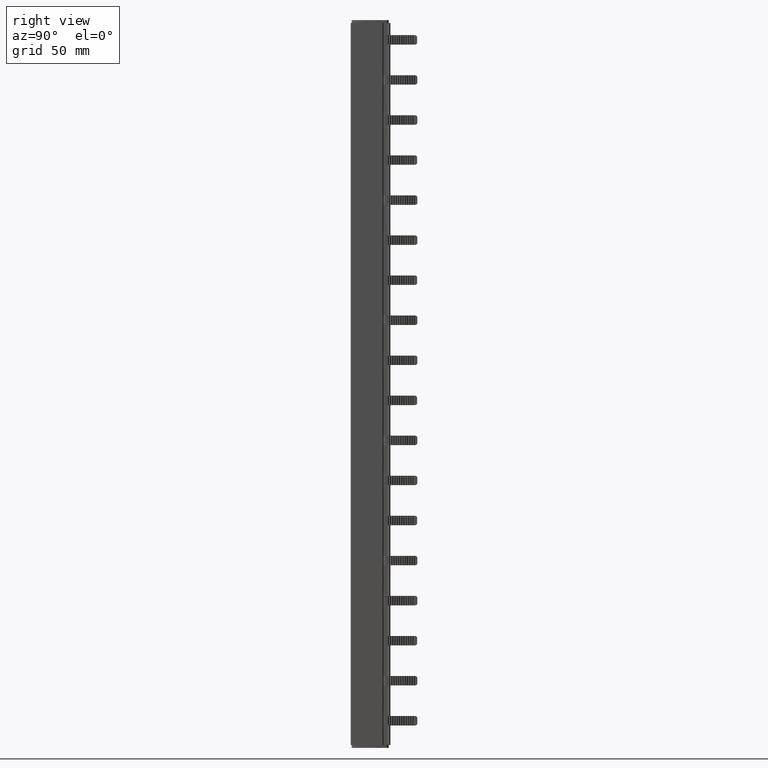
[diagram: clean part render]
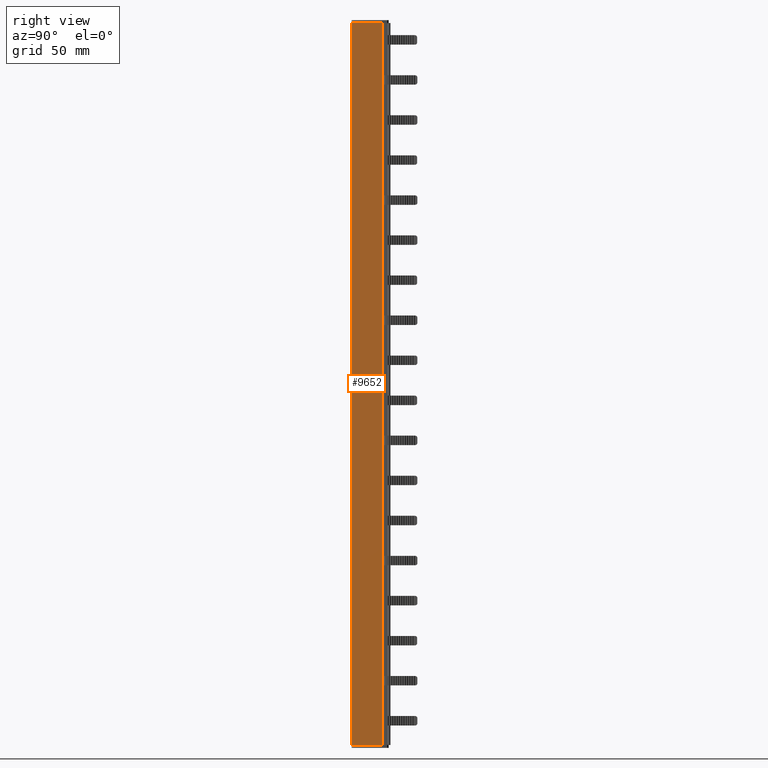
[diagram: same view with one face highlighted and labeled with its STEP entity id]
A machine part, right view. The second image highlights one B-rep face of the part: STEP entity #9652.
In plain terms, the highlighted planar face has unit normal (1, -0, 0).
Its self-contained STEP definition (entity closure, byte-faithful):
#2489 = ORIENTED_EDGE ( 'NONE', *, *, #5163, .T. ) ;
#2491 = ORIENTED_EDGE ( 'NONE', *, *, #5135, .T. ) ;
#2501 = ORIENTED_EDGE ( 'NONE', *, *, #5136, .T. ) ;
#2515 = ORIENTED_EDGE ( 'NONE', *, *, #5215, .T. ) ;
#2517 = ORIENTED_EDGE ( 'NONE', *, *, #5236, .T. ) ;
#2520 = ORIENTED_EDGE ( 'NONE', *, *, #5156, .T. ) ;
#2526 = ORIENTED_EDGE ( 'NONE', *, *, #5127, .T. ) ;
#2528 = ORIENTED_EDGE ( 'NONE', *, *, #5180, .T. ) ;
#2532 = ORIENTED_EDGE ( 'NONE', *, *, #5223, .T. ) ;
#2541 = ORIENTED_EDGE ( 'NONE', *, *, #5252, .T. ) ;
#2550 = ORIENTED_EDGE ( 'NONE', *, *, #5192, .T. ) ;
#2608 = ORIENTED_EDGE ( 'NONE', *, *, #5271, .F. ) ;
#3657 = VERTEX_POINT ( 'NONE', #19058 ) ;
#3690 = VERTEX_POINT ( 'NONE', #19056 ) ;
#5127 = EDGE_CURVE ( 'NONE', #6175, #6171, #19663, .T. ) ;
#5135 = EDGE_CURVE ( 'NONE', #6166, #3690, #19742, .T. ) ;
#5136 = EDGE_CURVE ( 'NONE', #6153, #3657, #19708, .T. ) ;
#5156 = EDGE_CURVE ( 'NONE', #6111, #6166, #19770, .T. ) ;
#5163 = EDGE_CURVE ( 'NONE', #3657, #6111, #19818, .T. ) ;
#5180 = EDGE_CURVE ( 'NONE', #6171, #6153, #19844, .T. ) ;
#5192 = EDGE_CURVE ( 'NONE', #6126, #6169, #19843, .T. ) ;
#5215 = EDGE_CURVE ( 'NONE', #6133, #6126, #19940, .T. ) ;
#5223 = EDGE_CURVE ( 'NONE', #6150, #6179, #19952, .T. ) ;
#5236 = EDGE_CURVE ( 'NONE', #3690, #6150, #20013, .T. ) ;
#5252 = EDGE_CURVE ( 'NONE', #6179, #6133, #20053, .T. ) ;
#5271 = EDGE_CURVE ( 'NONE', #6175, #6169, #20149, .T. ) ;
#6111 = VERTEX_POINT ( 'NONE', #23616 ) ;
#6126 = VERTEX_POINT ( 'NONE', #23677 ) ;
#6133 = VERTEX_POINT ( 'NONE', #23675 ) ;
#6150 = VERTEX_POINT ( 'NONE', #23652 ) ;
#6153 = VERTEX_POINT ( 'NONE', #23698 ) ;
#6166 = VERTEX_POINT ( 'NONE', #23663 ) ;
#6169 = VERTEX_POINT ( 'NONE', #23671 ) ;
#6171 = VERTEX_POINT ( 'NONE', #23668 ) ;
#6175 = VERTEX_POINT ( 'NONE', #23684 ) ;
#6179 = VERTEX_POINT ( 'NONE', #23693 ) ;
#7696 = EDGE_LOOP ( 'NONE', ( #2526, #2528, #2501, #2489, #2520, #2491, #2517, #2532, #2541, #2515, #2550, #2608 ) ) ;
#9652 = ADVANCED_FACE ( 'NONE', ( #30009 ), #30023, .T. ) ;
#11319 = VECTOR ( 'NONE', #19685, 1000.000000000000000 ) ;
#11429 = VECTOR ( 'NONE', #19737, 1000.000000000000000 ) ;
#11455 = VECTOR ( 'NONE', #19825, 1000.000000000000000 ) ;
#11472 = VECTOR ( 'NONE', #19854, 1000.000000000000000 ) ;
#11481 = VECTOR ( 'NONE', #19748, 1000.000000000000000 ) ;
#11511 = VECTOR ( 'NONE', #19706, 1000.000000000000000 ) ;
#11582 = VECTOR ( 'NONE', #20021, 1000.000000000000000 ) ;
#11625 = VECTOR ( 'NONE', #19988, 1000.000000000000000 ) ;
#11658 = VECTOR ( 'NONE', #19983, 1000.000000000000000 ) ;
#11697 = VECTOR ( 'NONE', #19913, 1000.000000000000000 ) ;
#11751 = VECTOR ( 'NONE', #20150, 1000.000000000000000 ) ;
#11770 = VECTOR ( 'NONE', #20074, 1000.000000000000000 ) ;
#19056 = CARTESIAN_POINT ( 'NONE',  ( 748.5966921641407900, 269.2856520984287800, -102.4499999999603000 ) ) ;
#19058 = CARTESIAN_POINT ( 'NONE',  ( 748.5967074896800600, 258.3943096212115600, -102.4340184032063900 ) ) ;
#19663 = LINE ( 'NONE', #19676, #11319 ) ;
#19676 = CARTESIAN_POINT ( 'NONE',  ( 748.5966921641407900, 255.7107092558799200, 221.5499999999999800 ) ) ;
#19685 = DIRECTION ( 'NONE',  ( 0.0000000000000000000, 0.0000000000000000000, -1.000000000000000000 ) ) ;
#19705 = CARTESIAN_POINT ( 'NONE',  ( 748.5966921641403400, 258.3939677302028600, -102.4499999999523800 ) ) ;
#19706 = DIRECTION ( 'NONE',  ( -3.436774304682105600E-013, 0.0000000000000000000, 1.000000000000000000 ) ) ;
#19708 = LINE ( 'NONE', #19705, #11511 ) ;
#19712 = CARTESIAN_POINT ( 'NONE',  ( 748.5966921641407900, 256.0917889543209200, -102.4499999999205800 ) ) ;
#19737 = DIRECTION ( 'NONE',  ( 0.0000000000000000000, 1.000000000000000000, 0.0000000000000000000 ) ) ;
#19742 = LINE ( 'NONE', #19712, #11429 ) ;
#19748 = DIRECTION ( 'NONE',  ( 3.436774304682105600E-013, -0.0000000000000000000, -1.000000000000000000 ) ) ;
#19770 = LINE ( 'NONE', #19771, #11481 ) ;
#19771 = CARTESIAN_POINT ( 'NONE',  ( 748.5966924815747900, 261.2850000903961200, -103.0801027405529600 ) ) ;
#19798 = CARTESIAN_POINT ( 'NONE',  ( 748.5966921641407900, 256.0917889543209200, -102.4340184032064500 ) ) ;
#19818 = LINE ( 'NONE', #19798, #11455 ) ;
#19825 = DIRECTION ( 'NONE',  ( 0.0000000000000000000, 1.000000000000000000, 0.0000000000000000000 ) ) ;
#19843 = LINE ( 'NONE', #19872, #11697 ) ;
#19844 = LINE ( 'NONE', #19887, #11472 ) ;
#19854 = DIRECTION ( 'NONE',  ( -0.0000000000000000000, 1.000000000000000000, 0.0000000000000000000 ) ) ;
#19872 = CARTESIAN_POINT ( 'NONE',  ( 748.5966921641407900, 258.3939677302045100, 218.9840184032063600 ) ) ;
#19887 = CARTESIAN_POINT ( 'NONE',  ( 748.5966921641407900, 267.9674724974088900, -102.4500000000000000 ) ) ;
#19913 = DIRECTION ( 'NONE',  ( 3.436774304682105600E-013, -0.0000000000000000000, 1.000000000000000000 ) ) ;
#19940 = LINE ( 'NONE', #19979, #11658 ) ;
#19952 = LINE ( 'NONE', #20007, #11625 ) ;
#19979 = CARTESIAN_POINT ( 'NONE',  ( 748.5966921641407900, 256.0917889543209200, 218.9840184032064800 ) ) ;
#19983 = DIRECTION ( 'NONE',  ( -0.0000000000000000000, -1.000000000000000000, -0.0000000000000000000 ) ) ;
#19988 = DIRECTION ( 'NONE',  ( -0.0000000000000000000, -1.000000000000000000, -0.0000000000000000000 ) ) ;
#20007 = CARTESIAN_POINT ( 'NONE',  ( 748.5966921641407900, 256.0917889543209200, 219.0000000000000000 ) ) ;
#20013 = LINE ( 'NONE', #20020, #11582 ) ;
#20020 = CARTESIAN_POINT ( 'NONE',  ( 748.5966921641407900, 269.2856520984287800, 221.5499999999999800 ) ) ;
#20021 = DIRECTION ( 'NONE',  ( -0.0000000000000000000, -0.0000000000000000000, 1.000000000000000000 ) ) ;
#20053 = LINE ( 'NONE', #20070, #11770 ) ;
#20070 = CARTESIAN_POINT ( 'NONE',  ( 748.5966921641407900, 261.2850084737688100, 219.0000000000000000 ) ) ;
#20074 = DIRECTION ( 'NONE',  ( 0.0000000000000000000, 0.0000000000000000000, -1.000000000000000000 ) ) ;
#20144 = CARTESIAN_POINT ( 'NONE',  ( 748.5966921641407900, 265.8503281940593300, 219.0000000000000000 ) ) ;
#20149 = LINE ( 'NONE', #20144, #11751 ) ;
#20150 = DIRECTION ( 'NONE',  ( -0.0000000000000000000, 1.000000000000000000, 0.0000000000000000000 ) ) ;
#23616 = CARTESIAN_POINT ( 'NONE',  ( 748.5966924021878400, 261.2850000911452100, -102.4340184032063700 ) ) ;
#23652 = CARTESIAN_POINT ( 'NONE',  ( 748.5966921641407900, 269.2856520984287800, 219.0000000000000000 ) ) ;
#23663 = CARTESIAN_POINT ( 'NONE',  ( 748.5966922717906300, 261.2850047310068900, -102.4499999999602600 ) ) ;
#23668 = CARTESIAN_POINT ( 'NONE',  ( 748.5966921641407900, 255.7107092558799200, -102.4500000000000200 ) ) ;
#23671 = CARTESIAN_POINT ( 'NONE',  ( 748.5966921641409000, 258.3939677302049600, 219.0000000000000300 ) ) ;
#23675 = CARTESIAN_POINT ( 'NONE',  ( 748.5966922436277900, 261.2850063772683600, 218.9840184032063900 ) ) ;
#23677 = CARTESIAN_POINT ( 'NONE',  ( 748.5967075321699400, 258.3943100788916400, 218.9840184032064200 ) ) ;
#23684 = CARTESIAN_POINT ( 'NONE',  ( 748.5966921641407900, 255.7107092558799200, 219.0000000000000000 ) ) ;
#23693 = CARTESIAN_POINT ( 'NONE',  ( 748.5966921643480400, 261.2850084737734700, 219.0000000000000300 ) ) ;
#23698 = CARTESIAN_POINT ( 'NONE',  ( 748.5966921641405600, 258.3939677302040500, -102.4500000000000000 ) ) ;
#26554 = AXIS2_PLACEMENT_3D ( 'NONE', #30013, #30014, #30028 ) ;
#30009 = FACE_OUTER_BOUND ( 'NONE', #7696, .T. ) ;
#30013 = CARTESIAN_POINT ( 'NONE',  ( 748.5966921641407900, 256.0917889543209200, 221.5499999999999800 ) ) ;
#30014 = DIRECTION ( 'NONE',  ( 1.000000000000000000, -0.0000000000000000000, 0.0000000000000000000 ) ) ;
#30023 = PLANE ( 'NONE',  #26554 ) ;
#30028 = DIRECTION ( 'NONE',  ( 0.0000000000000000000, 0.0000000000000000000, -1.000000000000000000 ) ) ;